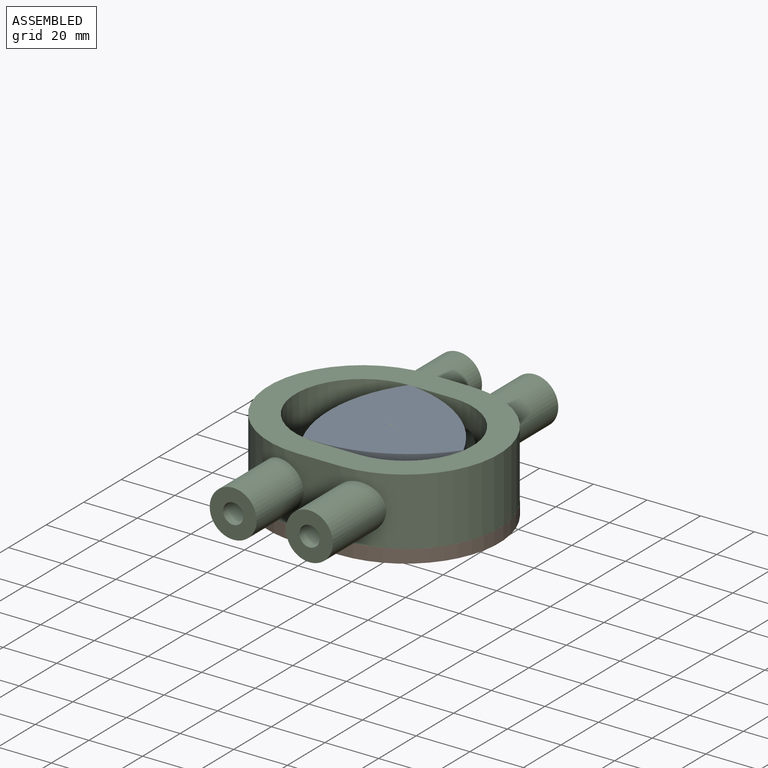
[diagram: assembled view]
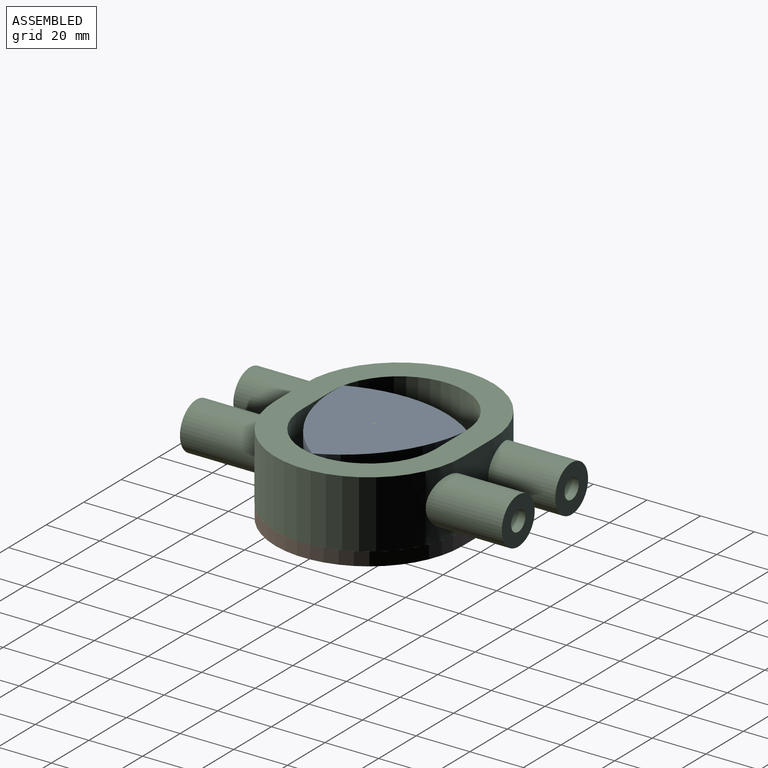
[diagram: assembled view, second angle]
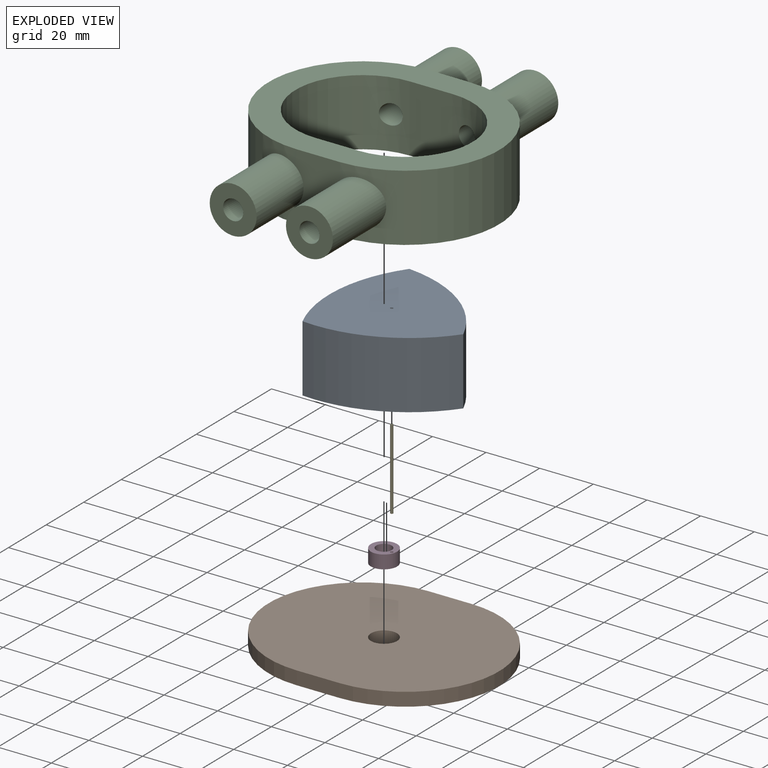
[diagram: exploded view]
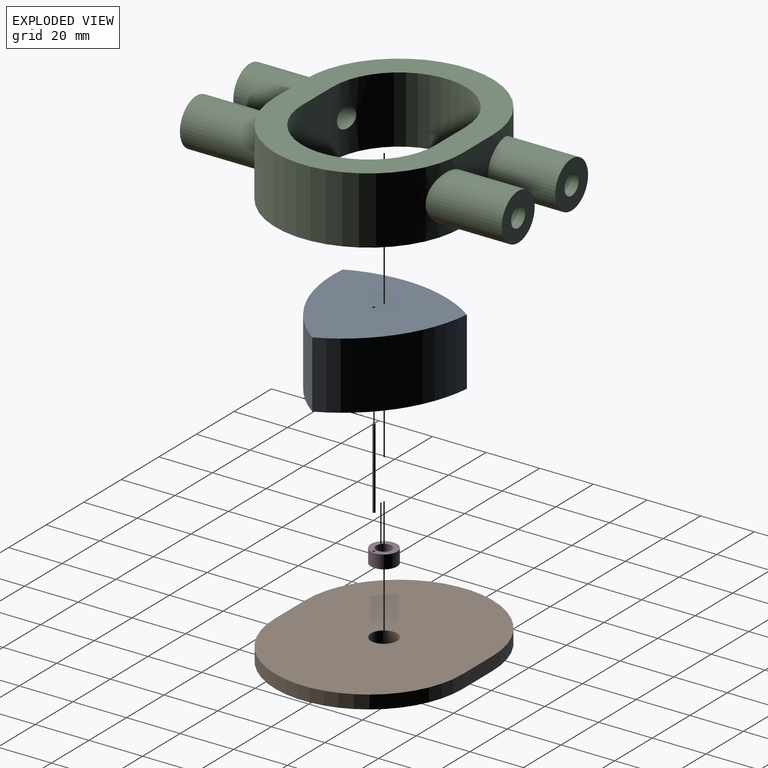
[diagram: exploded view, second angle]
ASSEMBLY  parts=5 mates=4
PART A: 6 faces, bbox 50x50x25 mm
  f0: plane 50x50mm, normal (0,0,1), area 1761.1mm2, adj f2,f3,f4,f5
  f1: plane 50x50mm, normal (0,0,-1), area 1761.1mm2, adj f2,f3,f4,f5
  f2: cylinder r=50mm len=43.3mm, axis (0,0,1), area 1309mm2, adj f0,f1,f3,f4
  f3: cylinder r=50mm len=43.3mm, axis (0,0,1), area 1309mm2, adj f0,f1,f2,f4
  f4: cylinder r=50mm len=50mm, axis (0,0,1), area 1309mm2, adj f0,f1,f2,f3
  f5: cylinder r=0.5mm len=25mm, axis (0,0,-1), area 78.5mm2, adj f0,f1
PART B: 7 faces, bbox 85.9x70x5 mm
  f0: plane 15.94x5mm, normal (0,-1,0), area 79.7mm2, adj f1,f3,f4,f5
  f1: cylinder r=35mm len=70mm, axis (0,0,1), area 549.8mm2, adj f0,f2,f4,f5
  f2: plane 15.94x5mm, normal (0,1,0), area 79.7mm2, adj f1,f3,f4,f5
  f3: cylinder r=35mm len=70mm, axis (0,0,1), area 549.8mm2, adj f0,f2,f4,f5
  f4: plane 85.94x70mm, normal (0,0,-1), area 4889.6mm2, adj f0,f1,f2,f3,f6
  f5: plane 85.94x70mm, normal (0,0,1), area 4889.6mm2, adj f0,f1,f2,f3,f6
  f6: cylinder r=4.87mm len=9.74mm, axis (0,0,-1), area 152.9mm2, adj f4,f5
PART C: 22 faces, bbox 85.9x120x25 mm
  f0: cylinder r=25mm len=50mm, axis (0,0,1), area 1871.7mm2, adj f1,f2,f6,f7,f8,f9
  f1: plane 85.94x70mm, normal (0,0,1), area 2203.7mm2, adj f0,f3,f4,f5,f6,f7,f14,f15
  f2: plane 85.94x70mm, normal (0,0,-1), area 2203.7mm2, adj f0,f3,f4,f5,f6,f7,f14,f15
  f3: plane 25x15.94mm, normal (0,-1,0), area 356.3mm2, adj f1,f2,f4,f11,f15,f19
  f4: cylinder r=35mm len=70mm, axis (0,0,1), area 2298.4mm2, adj f1,f2,f3,f5,f11,f12
  f5: plane 25x15.94mm, normal (0,1,0), area 356.3mm2, adj f1,f2,f4,f12,f15,f20
  f6: plane 25x15.94mm, normal (0,1,0), area 398.4mm2, adj f0,f1,f2,f14
  f7: plane 25x15.94mm, normal (0,-1,0), area 398.4mm2, adj f0,f1,f2,f14
  f8: cylinder r=3.75mm len=37.09mm, axis (0,-1,0), area 847mm2, adj f0,f10
  f9: cylinder r=3.75mm len=37.09mm, axis (0,-1,0), area 847mm2, adj f0,f13
  f10: plane 17.5x17.5mm, normal (0,-1,0), area 196.3mm2, adj f8,f11
  f11: cylinder r=8.75mm len=28.38mm, axis (0,-1,0), area 1436.8mm2, adj f3,f4,f10
  f12: cylinder r=8.75mm len=28.38mm, axis (0,-1,0), area 1436.8mm2, adj f4,f5,f13
  f13: plane 17.5x17.5mm, normal (0,1,0), area 196.3mm2, adj f9,f12
  f14: cylinder r=25mm len=50mm, axis (0,0,1), area 1871.9mm2, adj f1,f2,f6,f7,f16,f17
  f15: cylinder r=35mm len=70mm, axis (0,0,1), area 2297.7mm2, adj f1,f2,f3,f5,f19,f20
  f16: cylinder r=3.75mm len=37.09mm, axis (0,-1,0), area 847mm2, adj f14,f18
  f17: cylinder r=3.75mm len=37.09mm, axis (0,-1,0), area 847mm2, adj f14,f21
  f18: plane 17.5x17.5mm, normal (0,-1,0), area 196.3mm2, adj f16,f19
  f19: cylinder r=8.75mm len=28.38mm, axis (0,-1,0), area 1436.8mm2, adj f3,f15,f18
  f20: cylinder r=8.75mm len=28.38mm, axis (0,-1,0), area 1436.7mm2, adj f5,f15,f21
  f21: plane 17.5x17.5mm, normal (0,1,0), area 196.3mm2, adj f17,f20
PART D: 5 faces, bbox 9.7x9.7x5 mm
  f0: plane 9.74x9.74mm, normal (0,0,-1), area 47.8mm2, adj f2,f3,f4
  f1: plane 9.74x9.74mm, normal (0,0,1), area 47.8mm2, adj f2,f3,f4
  f2: cylinder r=2.87mm len=5.74mm, axis (0,0,-1), area 90.1mm2, adj f0,f1
  f3: cylinder r=4.87mm len=9.74mm, axis (0,0,-1), area 152.9mm2, adj f0,f1
  f4: cylinder r=0.5mm len=5mm, axis (0,0,-1), area 15.7mm2, adj f0,f1
PART E: 3 faces, bbox 1x1x30 mm
  f0: cylinder r=0.5mm len=30mm, axis (0,0,-1), area 94.2mm2, adj f1,f2
  f1: plane 1x1mm, normal (0,0,1), area 0.8mm2, adj f0
  f2: plane 1x1mm, normal (0,0,-1), area 0.8mm2, adj f0
PLACE A rot(axis=(0,0,-1),155.8deg) t=(0.52,5.9,5)mm
PLACE B t=(0,-3.87,5)mm
PLACE C t=(0,-3.87,5)mm
PLACE D rot(axis=(0,0,-1),107.4deg) t=(-3.69,1.15,5)mm
PLACE E rot(axis=(0,0,-1),155.8deg) t=(0.52,5.9,5)mm
MATE revolute D.f2 <-> B.f6  axis (0,0,-1) through (0,0,0)mm
MATE fastened C.f2 <-> B.f6  axis (0,0,-1) through (0,0,5)mm
MATE revolute E.f0 <-> D.f4  axis (0,0,-1) through (3.69,-1.15,0)mm
MATE fastened E.f0 <-> A.f5  axis (0,0,1) through (3.69,-1.15,30)mm
